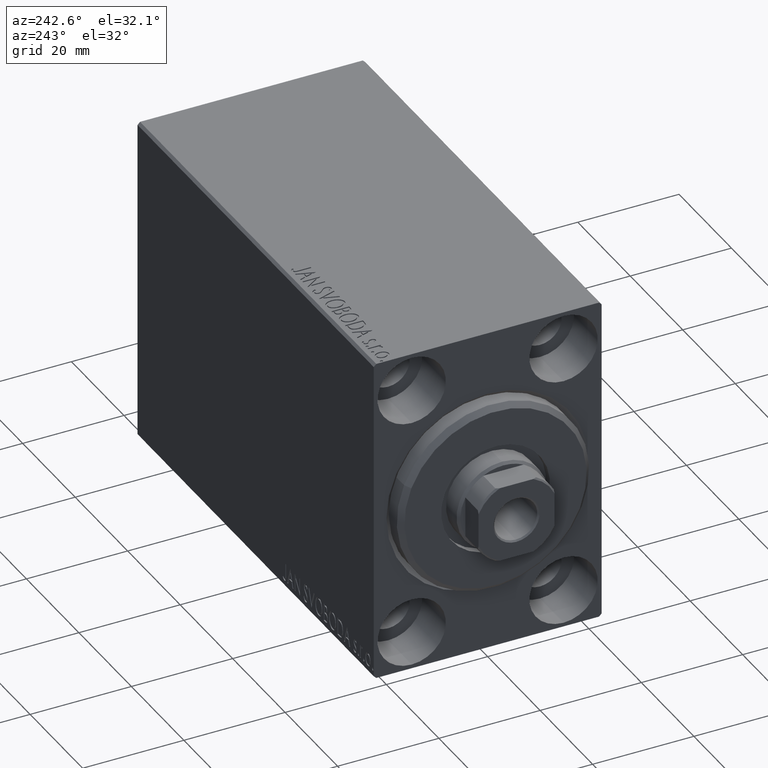
[diagram: clean part render]
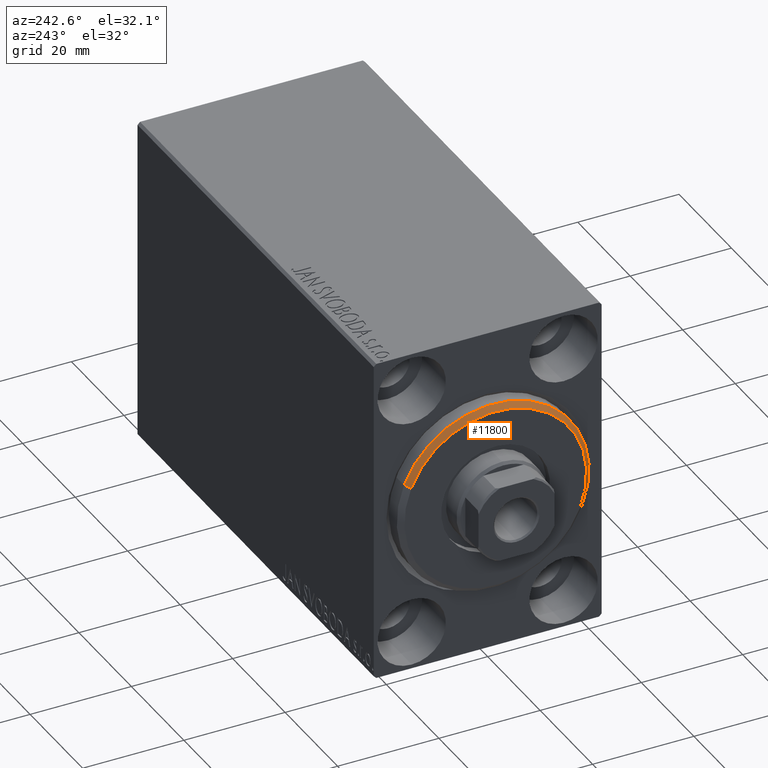
[diagram: same view with one face highlighted and labeled with its STEP entity id]
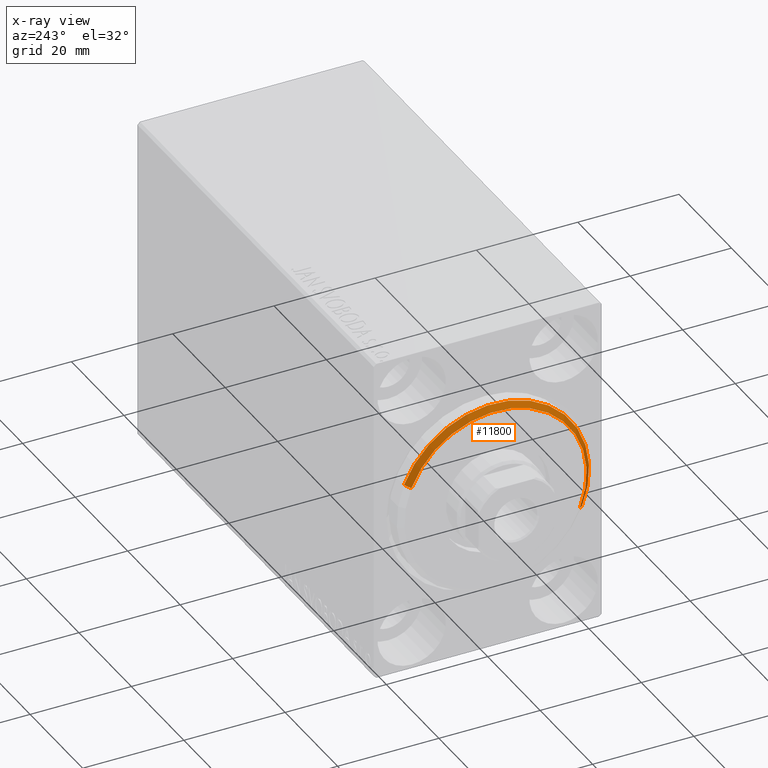
[diagram: x-ray of the same camera — body ghosted, the highlighted face saturated]
A machine part, auxiliary view. The second image highlights one B-rep face of the part: STEP entity #11800.
The next image is the same camera in x-ray: the body ghosted, the highlighted face saturated — about 0% of this face is hidden behind the body in this view.
In plain terms, the highlighted conical surface has half-angle 45 deg.
Its self-contained STEP definition (entity closure, byte-faithful):
#262 = VERTEX_POINT ( 'NONE', #8594 ) ;
#1880 = AXIS2_PLACEMENT_3D ( 'NONE', #7110, #11091, #14410 ) ;
#2614 = EDGE_CURVE ( 'NONE', #262, #12987, #15445, .T. ) ;
#3702 = VECTOR ( 'NONE', #28969, 1000.000000000000000 ) ;
#4368 = AXIS2_PLACEMENT_3D ( 'NONE', #6390, #35861, #22581 ) ;
#6390 = CARTESIAN_POINT ( 'NONE',  ( 1.999999999999992228, 0.000000000000000000, 0.000000000000000000 ) ) ;
#7110 = CARTESIAN_POINT ( 'NONE',  ( 3.000000000000000000, 0.000000000000000000, 0.000000000000000000 ) ) ;
#7582 = CARTESIAN_POINT ( 'NONE',  ( 3.000000000000000000, 0.000000000000000000, 17.99999999999999645 ) ) ;
#8594 = CARTESIAN_POINT ( 'NONE',  ( 3.000000000000000000, 2.265596578422603002E-15, -17.99999999999999645 ) ) ;
#10143 = ORIENTED_EDGE ( 'NONE', *, *, #32030, .F. ) ;
#11091 = DIRECTION ( 'NONE',  ( -1.000000000000000000, 0.000000000000000000, 0.000000000000000000 ) ) ;
#11463 = EDGE_CURVE ( 'NONE', #41504, #39914, #23141, .T. ) ;
#11800 = ADVANCED_FACE ( 'NONE', ( #16867 ), #39374, .T. ) ;
#12573 = CARTESIAN_POINT ( 'NONE',  ( 3.000000000000000000, 0.000000000000000000, 0.000000000000000000 ) ) ;
#12987 = VERTEX_POINT ( 'NONE', #33814 ) ;
#14410 = DIRECTION ( 'NONE',  ( 0.000000000000000000, 0.000000000000000000, 1.000000000000000000 ) ) ;
#15433 = DIRECTION ( 'NONE',  ( 0.000000000000000000, 0.000000000000000000, -1.000000000000000000 ) ) ;
#15445 = LINE ( 'NONE', #42034, #3702 ) ;
#16867 = FACE_OUTER_BOUND ( 'NONE', #22686, .T. ) ;
#16916 = CARTESIAN_POINT ( 'NONE',  ( 3.000000000000000000, 0.000000000000000000, 17.99999999999999645 ) ) ;
#20051 = ORIENTED_EDGE ( 'NONE', *, *, #11463, .T. ) ;
#22348 = ORIENTED_EDGE ( 'NONE', *, *, #2614, .F. ) ;
#22581 = DIRECTION ( 'NONE',  ( 0.000000000000000000, 0.000000000000000000, -1.000000000000000000 ) ) ;
#22686 = EDGE_LOOP ( 'NONE', ( #22348, #43673, #20051, #10143 ) ) ;
#23141 = LINE ( 'NONE', #16916, #42198 ) ;
#23623 = CIRCLE ( 'NONE', #41279, 17.99999999999999645 ) ;
#28969 = DIRECTION ( 'NONE',  ( -0.7071067811865487940, 8.659560562354918067E-17, -0.7071067811865463515 ) ) ;
#29621 = DIRECTION ( 'NONE',  ( 1.000000000000000000, -0.000000000000000000, 0.000000000000000000 ) ) ;
#30013 = DIRECTION ( 'NONE',  ( -0.7071067811865487940, 0.000000000000000000, 0.7071067811865463515 ) ) ;
#32030 = EDGE_CURVE ( 'NONE', #12987, #39914, #34789, .T. ) ;
#33814 = CARTESIAN_POINT ( 'NONE',  ( 1.999999999999992228, 2.326828918379970970E-15, -19.00000000000000000 ) ) ;
#34789 = CIRCLE ( 'NONE', #4368, 19.00000000000000000 ) ;
#35861 = DIRECTION ( 'NONE',  ( -1.000000000000000000, 0.000000000000000000, 0.000000000000000000 ) ) ;
#39072 = CARTESIAN_POINT ( 'NONE',  ( 1.999999999999992228, 0.000000000000000000, 19.00000000000000000 ) ) ;
#39374 = CONICAL_SURFACE ( 'NONE', #1880, 17.99999999999999645, 0.7853981633974466137 ) ;
#39914 = VERTEX_POINT ( 'NONE', #39072 ) ;
#40420 = EDGE_CURVE ( 'NONE', #41504, #262, #23623, .T. ) ;
#41279 = AXIS2_PLACEMENT_3D ( 'NONE', #12573, #29621, #15433 ) ;
#41504 = VERTEX_POINT ( 'NONE', #7582 ) ;
#42034 = CARTESIAN_POINT ( 'NONE',  ( 3.000000000000000000, 2.204364238465235033E-15, -17.99999999999999645 ) ) ;
#42198 = VECTOR ( 'NONE', #30013, 1000.000000000000000 ) ;
#43673 = ORIENTED_EDGE ( 'NONE', *, *, #40420, .F. ) ;